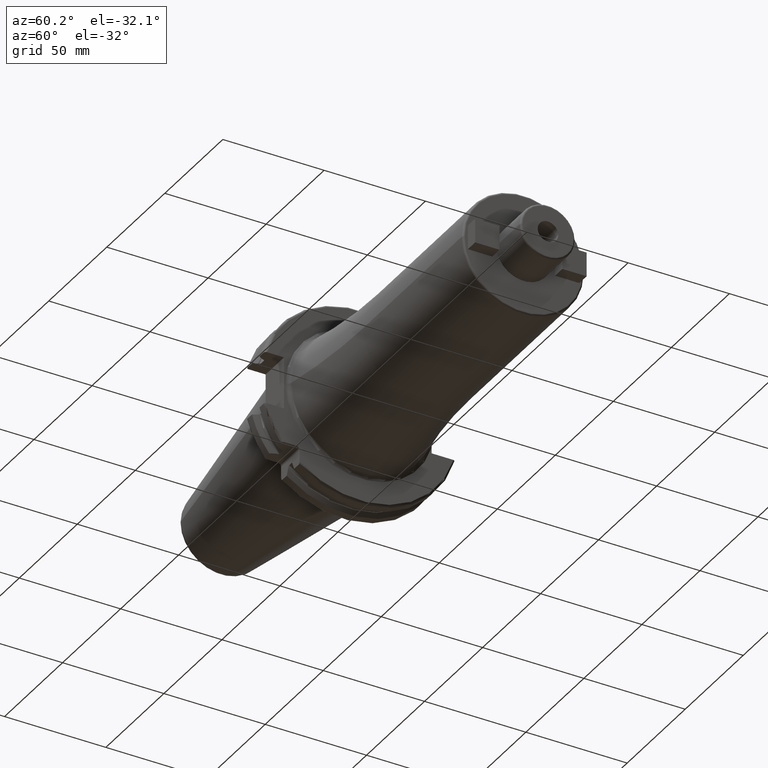
[diagram: clean part render]
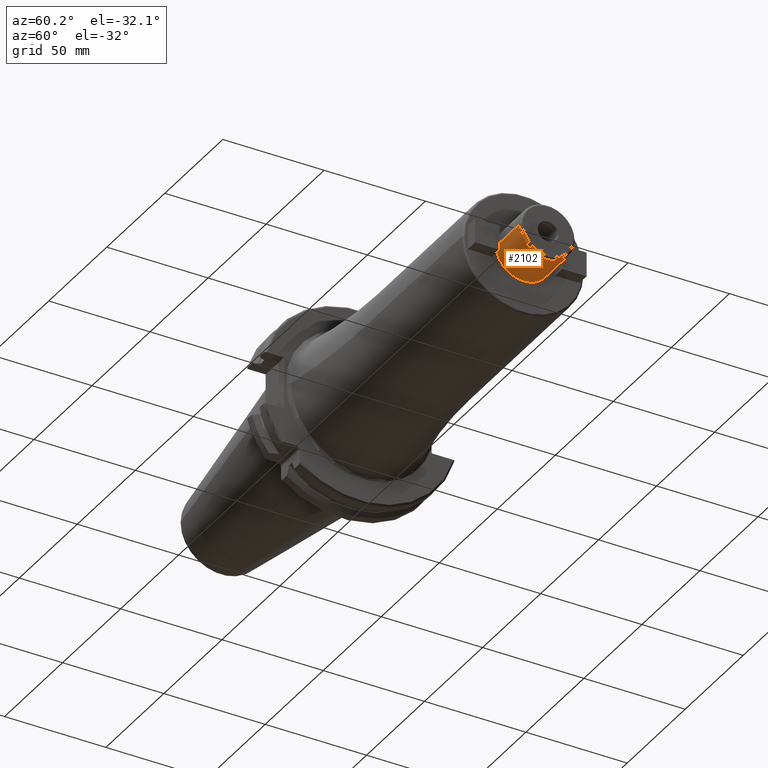
[diagram: same view with one face highlighted and labeled with its STEP entity id]
A machine part, auxiliary view. The second image highlights one B-rep face of the part: STEP entity #2102.
In plain terms, the highlighted cylindrical surface (edge-blend (fillet) strip) has radius 13.5 mm, axis along (1, 0, 0).
Its self-contained STEP definition (entity closure, byte-faithful):
#265=CARTESIAN_POINT('',(1.6E2,0.E0,0.E0));
#266=DIRECTION('',(-1.E0,0.E0,0.E0));
#267=DIRECTION('',(0.E0,1.E0,0.E0));
#268=AXIS2_PLACEMENT_3D('',#265,#266,#267);
#327=CARTESIAN_POINT('',(1.8E2,0.E0,0.E0));
#328=DIRECTION('',(-1.E0,0.E0,0.E0));
#329=DIRECTION('',(0.E0,1.E0,0.E0));
#330=AXIS2_PLACEMENT_3D('',#327,#328,#329);
#332=DIRECTION('',(-1.E0,0.E0,1.668015414318E-13));
#333=VECTOR('',#332,2.E1);
#334=CARTESIAN_POINT('',(1.8E2,1.35E1,-3.334928646518E-12));
#335=LINE('',#334,#333);
#336=DIRECTION('',(-1.E0,0.E0,-1.663308882474E-13));
#337=VECTOR('',#336,2.E1);
#338=CARTESIAN_POINT('',(1.8E2,-1.35E1,3.325515582830E-12));
#339=LINE('',#338,#337);
#1610=CARTESIAN_POINT('',(1.6E2,1.35E1,0.E0));
#1611=CARTESIAN_POINT('',(1.6E2,-1.35E1,0.E0));
#1612=VERTEX_POINT('',#1610);
#1613=VERTEX_POINT('',#1611);
#1632=CARTESIAN_POINT('',(1.8E2,1.35E1,0.E0));
#1633=CARTESIAN_POINT('',(1.8E2,-1.35E1,0.E0));
#1634=VERTEX_POINT('',#1632);
#1635=VERTEX_POINT('',#1633);
#2091=CARTESIAN_POINT('',(1.09525E1,0.E0,0.E0));
#2092=DIRECTION('',(1.E0,0.E0,0.E0));
#2093=DIRECTION('',(0.E0,-1.E0,0.E0));
#2094=AXIS2_PLACEMENT_3D('',#2091,#2092,#2093);
#2095=CYLINDRICAL_SURFACE('',#2094,1.35E1);
#2096=ORIENTED_EDGE('',*,*,#2082,.F.);
#2097=ORIENTED_EDGE('',*,*,#2057,.T.);
#2098=ORIENTED_EDGE('',*,*,#2022,.T.);
#2099=ORIENTED_EDGE('',*,*,#2054,.F.);
#2100=EDGE_LOOP('',(#2096,#2097,#2098,#2099));
#2101=FACE_OUTER_BOUND('',#2100,.F.);
#2102=ADVANCED_FACE('',(#2101),#2095,.T.);
#269=CIRCLE('',#268,1.35E1);
#331=CIRCLE('',#330,1.35E1);
#2022=EDGE_CURVE('',#1612,#1613,#269,.T.);
#2054=EDGE_CURVE('',#1635,#1613,#339,.T.);
#2057=EDGE_CURVE('',#1634,#1612,#335,.T.);
#2082=EDGE_CURVE('',#1634,#1635,#331,.T.);